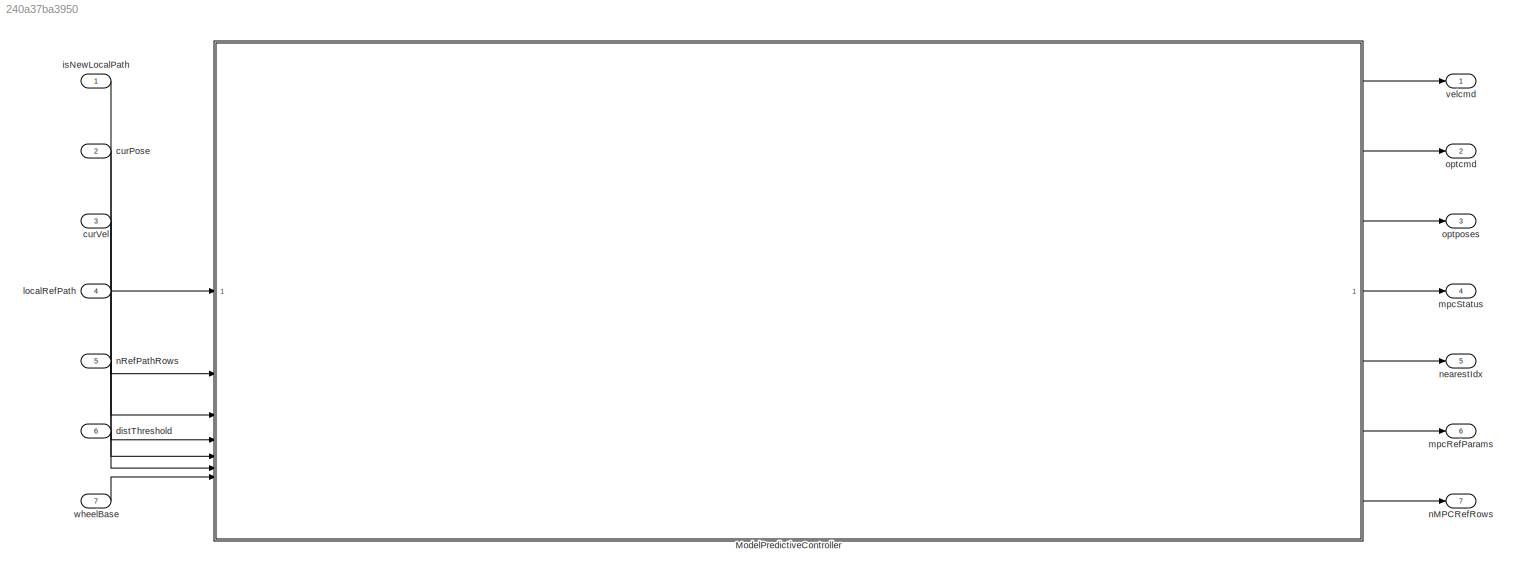
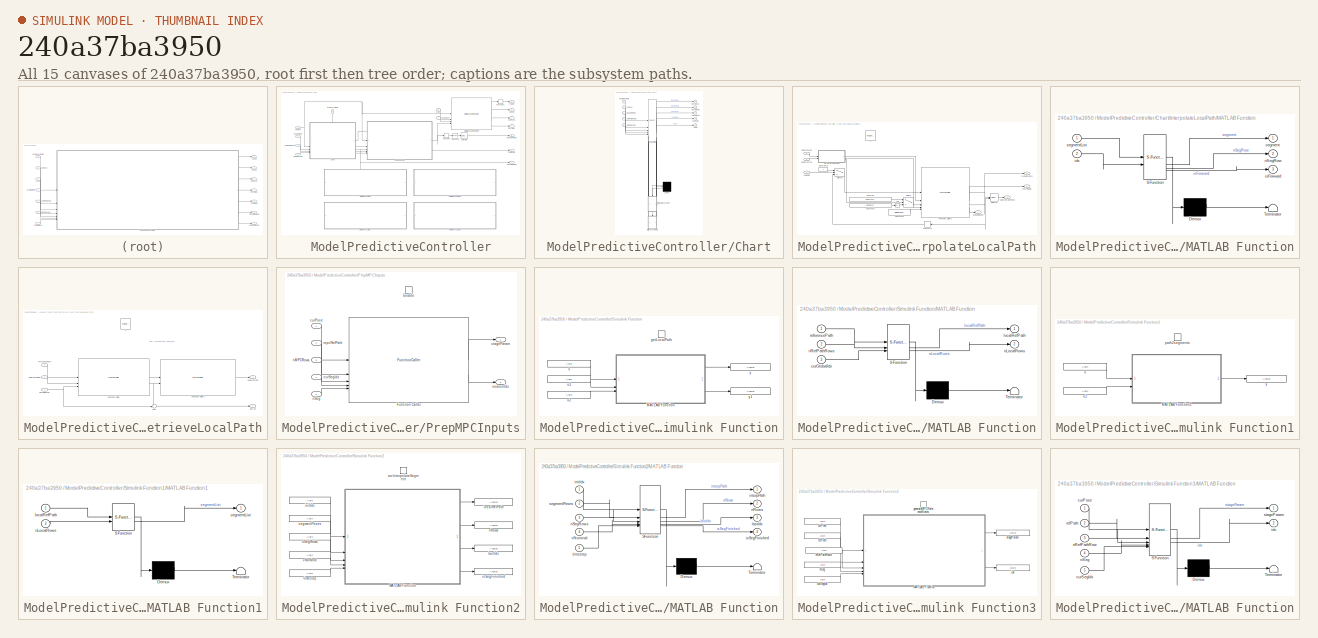
[diagram: thumbnail index - all 15 canvases of the model, root first then tree order]
MODEL slx_240a37ba3950
KIND model
CONFIG AbsTol = auto
CONFIG EnableMultiTasking = off
CONFIG FixedStep = auto
CONFIG MaxStep = auto
CONFIG MinStep = auto
CONFIG RelTol = 1e-3
CONFIG SampleTimeConstraint = Unconstrained
CONFIG SolverName = FixedStepAuto
CONFIG StartTime = 0.0
CONFIG StopTime = inf
BLOCK [SubSystem] ModelPredictiveController
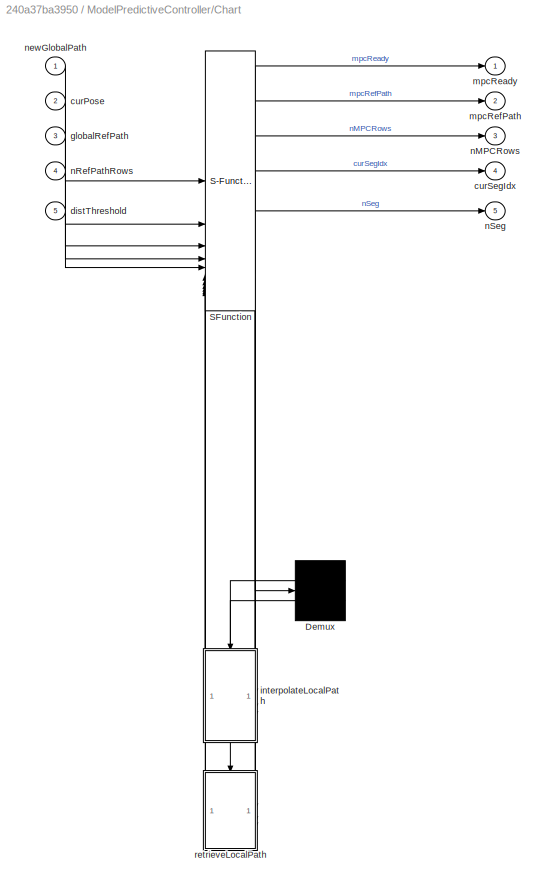
BLOCK [SubSystem] ModelPredictiveController/Chart
  ErrorFcn = Stateflow.Translate.translate
  PermitHierarchicalResolution = ExplicitOnly
  PortSchema = {"entries":[{"content":{"sides":[{"content":{"connectorIds":["In2","In3","In4","In5"]},"type":"ConnectorPlacement.EquallySpacedRectSide","uuid":"d330c18e-78c4-4446-bef4-6c07f5901eab"},{"content":{"connectorIds":["Out1","Out2","Out3","Out4","Out5"],"side":"RIGHT"},"type":"ConnectorPlacement.EquallySpacedRectSide","uuid":"b290a02e-6c58-4d00-b488-7afeab83322a"},{"content":{"connectorIds":["In1"],"sid...<+291ch>
  SFBlockType = Chart
  TreatAsAtomicUnit = on
BLOCK [Demux] ModelPredictiveController/Chart/ Demux 
  Outputs = 2
BLOCK [S-Function] ModelPredictiveController/Chart/ SFunction 
  EnableBusSupport = on
  FunctionName = sf_sfun
  PortCounts = [11 12]
  SFcnIsStateOwnerBlock = off
  SFunctionDeploymentMode = off
  Tag = Stateflow S-Function 6
BLOCK [Inport] ModelPredictiveController/Chart/curPose
  Port = 2
BLOCK [Outport] ModelPredictiveController/Chart/curSegIdx
  Port = 4
BLOCK [Inport] ModelPredictiveController/Chart/distThreshold
  Port = 5
BLOCK [Inport] ModelPredictiveController/Chart/globalRefPath
  Port = 3
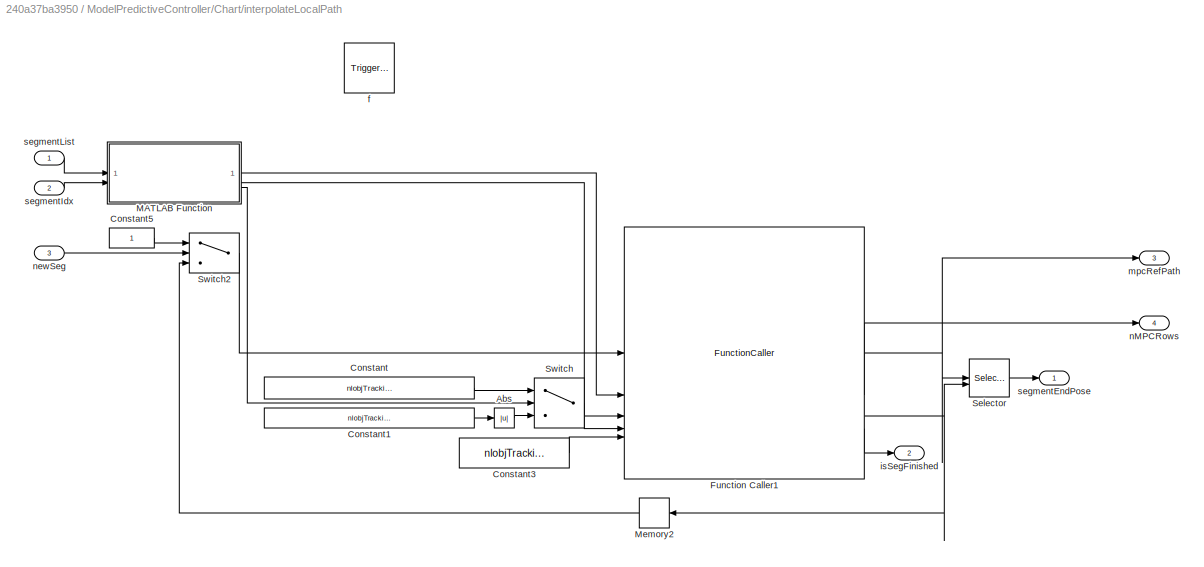
BLOCK [SubSystem] ModelPredictiveController/Chart/interpolateLocalPath
  PreDeleteFcn = Stateflow.SLINSF.SimulinkMan.removePreDeleteFcn
  UndoDeleteFcn = Stateflow.SLINSF.SimulinkMan.restorePreDeleteFcn
BLOCK [Abs] ModelPredictiveController/Chart/interpolateLocalPath/Abs
  SaturateOnIntegerOverflow = off
BLOCK [Constant] ModelPredictiveController/Chart/interpolateLocalPath/Constant
  Value = nlobjTracking.ManipulatedVariables(1).Max
BLOCK [Constant] ModelPredictiveController/Chart/interpolateLocalPath/Constant1
  Value = nlobjTracking.ManipulatedVariables(1).Min
BLOCK [Constant] ModelPredictiveController/Chart/interpolateLocalPath/Constant3
  Value = nlobjTracking.Ts
BLOCK [Constant] ModelPredictiveController/Chart/interpolateLocalPath/Constant5
BLOCK [FunctionCaller] ModelPredictiveController/Chart/interpolateLocalPath/Function Caller1
  FunctionPrototype = [localRefPath,nRows,lastIdx,isSegFinished] = arcInterpolateSegment(initIdx,segmentPoses,nSegRows,vNominal,timestep)
  InputArgumentSpecifications = <Enter example>
  OutputArgumentSpecifications = <Enter example>
BLOCK [SubSystem] ModelPredictiveController/Chart/interpolateLocalPath/MATLAB Function
  ErrorFcn = Stateflow.Translate.translate
  PermitHierarchicalResolution = ExplicitOnly
  SFBlockType = MATLAB Function
  TreatAsAtomicUnit = on
BLOCK [Demux] ModelPredictiveController/Chart/interpolateLocalPath/MATLAB Function/ Demux 
  Outputs = 1
BLOCK [S-Function] ModelPredictiveController/Chart/interpolateLocalPath/MATLAB Function/ SFunction 
  EnableBusSupport = on
  FunctionName = sf_sfun
  Parameters = maxLocalPathLen
  PortCounts = [2 4]
  SFcnIsStateOwnerBlock = off
  SFunctionDeploymentMode = off
  Tag = Stateflow S-Function 8
BLOCK [Terminator] ModelPredictiveController/Chart/interpolateLocalPath/MATLAB Function/ Terminator 
BLOCK [Inport] ModelPredictiveController/Chart/interpolateLocalPath/MATLAB Function/idx
  Port = 2
BLOCK [Outport] ModelPredictiveController/Chart/interpolateLocalPath/MATLAB Function/isForward
  Port = 3
BLOCK [Outport] ModelPredictiveController/Chart/interpolateLocalPath/MATLAB Function/nSegRow
  Port = 2
BLOCK [Outport] ModelPredictiveController/Chart/interpolateLocalPath/MATLAB Function/segment
BLOCK [Inport] ModelPredictiveController/Chart/interpolateLocalPath/MATLAB Function/segmentList
BLOCK [Memory] ModelPredictiveController/Chart/interpolateLocalPath/Memory2
  InheritSampleTime = on
  NameLocation = top
BLOCK [Selector] ModelPredictiveController/Chart/interpolateLocalPath/Selector
  IndexOptions = Index vector (port),Select all
  Indices = [1 3],1
  InputPortWidth = 3
  NumberOfDimensions = 2
  OutputSizes = 1,1
BLOCK [Switch] ModelPredictiveController/Chart/interpolateLocalPath/Switch
  Criteria = u2 > Threshold
  InputSameDT = off
  SaturateOnIntegerOverflow = off
BLOCK [Switch] ModelPredictiveController/Chart/interpolateLocalPath/Switch2
  Criteria = u2 > Threshold
  InputSameDT = off
  SaturateOnIntegerOverflow = off
BLOCK [TriggerPort] ModelPredictiveController/Chart/interpolateLocalPath/f
  CopyFcn = Stateflow.SLINSF.SimulinkMan.removeBlockPreDeleteFcn
  PreDeleteFcn = Stateflow.SLINSF.SimulinkMan.unsafePredeleteFcn
  StatesWhenEnabling = held
  TriggerType = function-call
  VariantControl = (inherit)
BLOCK [Outport] ModelPredictiveController/Chart/interpolateLocalPath/isSegFinished
  Port = 2
BLOCK [Outport] ModelPredictiveController/Chart/interpolateLocalPath/mpcRefPath
  Port = 3
BLOCK [Outport] ModelPredictiveController/Chart/interpolateLocalPath/nMPCRows
  Port = 4
BLOCK [Inport] ModelPredictiveController/Chart/interpolateLocalPath/newSeg
  OutDataTypeStr = boolean
  Port = 3
  PortDimensions = 1
  SignalType = real
  VarSizeSig = No
BLOCK [Outport] ModelPredictiveController/Chart/interpolateLocalPath/segmentEndPose
BLOCK [Inport] ModelPredictiveController/Chart/interpolateLocalPath/segmentIdx
  OutDataTypeStr = double
  Port = 2
  PortDimensions = 1
  SignalType = real
  VarSizeSig = No
BLOCK [Inport] ModelPredictiveController/Chart/interpolateLocalPath/segmentList
  OutDataTypeStr = Bus: mpcPathList_fixed_bus
  PortDimensions = 1
  VarSizeSig = No
BLOCK [Outport] ModelPredictiveController/Chart/mpcReady
BLOCK [Outport] ModelPredictiveController/Chart/mpcRefPath
  Port = 2
BLOCK [Outport] ModelPredictiveController/Chart/nMPCRows
  Port = 3
BLOCK [Inport] ModelPredictiveController/Chart/nRefPathRows
  Port = 4
BLOCK [Outport] ModelPredictiveController/Chart/nSeg
  Port = 5
BLOCK [Inport] ModelPredictiveController/Chart/newGlobalPath
BLOCK [SubSystem] ModelPredictiveController/Chart/retrieveLocalPath
  PreDeleteFcn = Stateflow.SLINSF.SimulinkMan.removePreDeleteFcn
  UndoDeleteFcn = Stateflow.SLINSF.SimulinkMan.restorePreDeleteFcn
BLOCK [FunctionCaller] ModelPredictiveController/Chart/retrieveLocalPath/Function Caller
  FunctionPrototype = [localRefPath,nLocalRows] = getLocalPath(referencePath,nRefPathRows,curGlobalIdx)
  InputArgumentSpecifications = <Enter example>
  OutputArgumentSpecifications = <Enter example>
BLOCK [FunctionCaller] ModelPredictiveController/Chart/retrieveLocalPath/Function Caller1
  FunctionPrototype = segmentList = path2segments(referencePath,nLocalRows)
  InputArgumentSpecifications = <Enter example>
  OutputArgumentSpecifications = <Enter example>
BLOCK [Sum] ModelPredictiveController/Chart/retrieveLocalPath/Sum
  Inputs = ++|
BLOCK [TriggerPort] ModelPredictiveController/Chart/retrieveLocalPath/f
  CopyFcn = Stateflow.SLINSF.SimulinkMan.removeBlockPreDeleteFcn
  PreDeleteFcn = Stateflow.SLINSF.SimulinkMan.unsafePredeleteFcn
  StatesWhenEnabling = held
  TriggerType = function-call
  VariantControl = (inherit)
BLOCK [Inport] ModelPredictiveController/Chart/retrieveLocalPath/lastGlobalIdx
  OutDataTypeStr = double
  Port = 3
  PortDimensions = 1
  SignalType = real
  VarSizeSig = No
BLOCK [Outport] ModelPredictiveController/Chart/retrieveLocalPath/lastIdx
  OutDataTypeStr = double
  Port = 2
  PortDimensions = 1
  SignalType = real
  VarSizeSig = No
BLOCK [Inport] ModelPredictiveController/Chart/retrieveLocalPath/nRefPathRows
  OutDataTypeStr = double
  Port = 2
  PortDimensions = 1
  SignalType = real
  VarSizeSig = No
BLOCK [Inport] ModelPredictiveController/Chart/retrieveLocalPath/referencePath
  OutDataTypeStr = double
  PortDimensions = [maxRefPathLen 3]
  SignalType = real
  VarSizeSig = No
BLOCK [Outport] ModelPredictiveController/Chart/retrieveLocalPath/segmentList
  OutDataTypeStr = Bus: mpcPathList_fixed_bus
  PortDimensions = 1
BLOCK [Reference] ModelPredictiveController/Multistage Nonlinear MPC  REF=mpclib/Multistage Nonlinear MPC  (lib defined in mdl_ae329e0e0455)
  SourceBlock = mpclib/Multistage Nonlinear MPC
  SourceType = NonlinearMPCMultistage
BLOCK [SubSystem] ModelPredictiveController/PrepMPCInputs
BLOCK [EnablePort] ModelPredictiveController/PrepMPCInputs/Enable
  StatesWhenEnabling = reset
BLOCK [FunctionCaller] ModelPredictiveController/PrepMPCInputs/Function Caller
  FunctionPrototype = [stageParam,idx] = generateMPCReferenceStates(curPose,refPath,nRefPathRows,curSegIdx,nSeg)
  InputArgumentSpecifications = <Enter example>
  OutputArgumentSpecifications = <Enter example>
BLOCK [Inport] ModelPredictiveController/PrepMPCInputs/curPose
BLOCK [Inport] ModelPredictiveController/PrepMPCInputs/curSegIdx
  Port = 4
BLOCK [Inport] ModelPredictiveController/PrepMPCInputs/mpcRefPath
  Port = 2
BLOCK [Inport] ModelPredictiveController/PrepMPCInputs/nMPCRows
  Port = 3
BLOCK [Inport] ModelPredictiveController/PrepMPCInputs/nSeg
  Port = 5
BLOCK [Outport] ModelPredictiveController/PrepMPCInputs/nearestIdx
  Port = 2
BLOCK [Outport] ModelPredictiveController/PrepMPCInputs/stageParam
BLOCK [Reshape] ModelPredictiveController/Reshape
  OutputDimensionality = Customize
  OutputDimensions = [4,11]
BLOCK [Reshape] ModelPredictiveController/Reshape1
  OutputDimensionality = Row vector (2-D)
BLOCK [Selector] ModelPredictiveController/Selector1
  IndexOptions = Index vector (dialog),Index vector (dialog)
  Indices = 2:11,1:3
  InputPortWidth = 3
  NumberOfDimensions = 2
  OutputSizes = 1,1
BLOCK [SubSystem] ModelPredictiveController/Simulink Function
  TreatAsAtomicUnit = on
BLOCK [SubSystem] ModelPredictiveController/Simulink Function/MATLAB Function
  ErrorFcn = Stateflow.Translate.translate
  PermitHierarchicalResolution = ExplicitOnly
  SFBlockType = MATLAB Function
  TreatAsAtomicUnit = on
BLOCK [Demux] ModelPredictiveController/Simulink Function/MATLAB Function/ Demux 
  Outputs = 1
BLOCK [S-Function] ModelPredictiveController/Simulink Function/MATLAB Function/ SFunction 
  EnableBusSupport = on
  FunctionName = sf_sfun
  Parameters = maxLocalLength,maxPathLength
  PortCounts = [3 3]
  SFcnIsStateOwnerBlock = off
  SFunctionDeploymentMode = off
  Tag = Stateflow S-Function 1
BLOCK [Terminator] ModelPredictiveController/Simulink Function/MATLAB Function/ Terminator 
BLOCK [Inport] ModelPredictiveController/Simulink Function/MATLAB Function/curGlobalIdx
  Port = 3
BLOCK [Outport] ModelPredictiveController/Simulink Function/MATLAB Function/localRefPath
BLOCK [Outport] ModelPredictiveController/Simulink Function/MATLAB Function/nLocalRows
  Port = 2
BLOCK [Inport] ModelPredictiveController/Simulink Function/MATLAB Function/nRefPathRows
  Port = 2
BLOCK [Inport] ModelPredictiveController/Simulink Function/MATLAB Function/referencePath
BLOCK [TriggerPort] ModelPredictiveController/Simulink Function/getLocalPath
  FunctionName = getLocalPath
  IsSimulinkFunction = on
  StatesWhenEnabling = held
  TriggerType = function-call
  VariantControl = (inherit)
BLOCK [ArgIn] ModelPredictiveController/Simulink Function/u
  ArgumentName = referencePath
  DisableCoverage = on
  PortDimensions = [maxRefPathLen 3]
BLOCK [ArgIn] ModelPredictiveController/Simulink Function/u1
  ArgumentName = nRefPathRows
  DisableCoverage = on
  Port = 2
BLOCK [ArgIn] ModelPredictiveController/Simulink Function/u2
  ArgumentName = curGlobalIdx
  DisableCoverage = on
  Port = 3
BLOCK [ArgOut] ModelPredictiveController/Simulink Function/y
  ArgumentName = localRefPath
  DisableCoverage = on
  PortDimensions = [maxLocalPathLen 3]
BLOCK [ArgOut] ModelPredictiveController/Simulink Function/y1
  ArgumentName = nLocalRows
  DisableCoverage = on
  Port = 2
BLOCK [SubSystem] ModelPredictiveController/Simulink Function1
  TreatAsAtomicUnit = on
BLOCK [SubSystem] ModelPredictiveController/Simulink Function1/MATLAB Function1
  ErrorFcn = Stateflow.Translate.translate
  PermitHierarchicalResolution = ExplicitOnly
  SFBlockType = MATLAB Function
  TreatAsAtomicUnit = on
BLOCK [Demux] ModelPredictiveController/Simulink Function1/MATLAB Function1/ Demux 
  Outputs = 1
BLOCK [S-Function] ModelPredictiveController/Simulink Function1/MATLAB Function1/ SFunction 
  EnableBusSupport = on
  FunctionName = sf_sfun
  Parameters = maxLocalPathLen,maxRefPathLen
  PortCounts = [2 2]
  SFcnIsStateOwnerBlock = off
  SFunctionDeploymentMode = off
  Tag = Stateflow S-Function 3
BLOCK [Terminator] ModelPredictiveController/Simulink Function1/MATLAB Function1/ Terminator 
BLOCK [Inport] ModelPredictiveController/Simulink Function1/MATLAB Function1/localRefPath
BLOCK [Inport] ModelPredictiveController/Simulink Function1/MATLAB Function1/nLocalRows
  Port = 2
BLOCK [Outport] ModelPredictiveController/Simulink Function1/MATLAB Function1/segmentList
BLOCK [TriggerPort] ModelPredictiveController/Simulink Function1/path2segments
  FunctionName = path2segments
  IsSimulinkFunction = on
  StatesWhenEnabling = held
  TriggerType = function-call
  VariantControl = (inherit)
BLOCK [ArgIn] ModelPredictiveController/Simulink Function1/u
  ArgumentName = referencePath
  DisableCoverage = on
  PortDimensions = [maxLocalPathLen 3]
BLOCK [ArgIn] ModelPredictiveController/Simulink Function1/u1
  ArgumentName = nLocalRows
  DisableCoverage = on
  Port = 2
BLOCK [ArgOut] ModelPredictiveController/Simulink Function1/y
  ArgumentName = segmentList
  DisableCoverage = on
  OutDataTypeStr = Bus: mpcPathList_fixed_bus
BLOCK [SubSystem] ModelPredictiveController/Simulink Function2
  TreatAsAtomicUnit = on
BLOCK [SubSystem] ModelPredictiveController/Simulink Function2/MATLAB Function
  ErrorFcn = Stateflow.Translate.translate
  PermitHierarchicalResolution = ExplicitOnly
  SFBlockType = MATLAB Function
  TreatAsAtomicUnit = on
BLOCK [Demux] ModelPredictiveController/Simulink Function2/MATLAB Function/ Demux 
  Outputs = 1
BLOCK [S-Function] ModelPredictiveController/Simulink Function2/MATLAB Function/ SFunction 
  EnableBusSupport = on
  FunctionName = sf_sfun
  Parameters = maxPathLength
  PortCounts = [5 5]
  SFcnIsStateOwnerBlock = off
  SFunctionDeploymentMode = off
  Tag = Stateflow S-Function 4
BLOCK [Terminator] ModelPredictiveController/Simulink Function2/MATLAB Function/ Terminator 
BLOCK [Inport] ModelPredictiveController/Simulink Function2/MATLAB Function/initIdx
BLOCK [Outport] ModelPredictiveController/Simulink Function2/MATLAB Function/interpPath
BLOCK [Outport] ModelPredictiveController/Simulink Function2/MATLAB Function/isSegFinished
  Port = 4
BLOCK [Outport] ModelPredictiveController/Simulink Function2/MATLAB Function/lastIdx
  Port = 3
BLOCK [Outport] ModelPredictiveController/Simulink Function2/MATLAB Function/nRows
  Port = 2
BLOCK [Inport] ModelPredictiveController/Simulink Function2/MATLAB Function/nSegRows
  Port = 3
BLOCK [Inport] ModelPredictiveController/Simulink Function2/MATLAB Function/segmentPoses
  Port = 2
BLOCK [Inport] ModelPredictiveController/Simulink Function2/MATLAB Function/timestep
  Port = 5
BLOCK [Inport] ModelPredictiveController/Simulink Function2/MATLAB Function/vNominal
  Port = 4
BLOCK [TriggerPort] ModelPredictiveController/Simulink Function2/arcInterpolateSegment
  FunctionName = arcInterpolateSegment
  IsSimulinkFunction = on
  StatesWhenEnabling = held
  TriggerType = function-call
  VariantControl = (inherit)
BLOCK [ArgIn] ModelPredictiveController/Simulink Function2/initIdx
  ArgumentName = initIdx
  DisableCoverage = on
BLOCK [ArgOut] ModelPredictiveController/Simulink Function2/isSegFinished
  ArgumentName = isSegFinished
  DisableCoverage = on
  OutDataTypeStr = boolean
  Port = 4
BLOCK [ArgOut] ModelPredictiveController/Simulink Function2/lastIdx
  ArgumentName = lastIdx
  DisableCoverage = on
  Port = 3
BLOCK [ArgOut] ModelPredictiveController/Simulink Function2/localRefPath
  ArgumentName = localRefPath
  DisableCoverage = on
  PortDimensions = [maxLocalPathLen 3]
BLOCK [ArgOut] ModelPredictiveController/Simulink Function2/nRows
  ArgumentName = nRows
  DisableCoverage = on
  Port = 2
BLOCK [ArgIn] ModelPredictiveController/Simulink Function2/nSegRows
  ArgumentName = nSegRows
  DisableCoverage = on
  Port = 3
BLOCK [ArgIn] ModelPredictiveController/Simulink Function2/segmentPoses
  ArgumentName = segmentPoses
  DisableCoverage = on
  Port = 2
  PortDimensions = [maxLocalPathLen 3]
BLOCK [ArgIn] ModelPredictiveController/Simulink Function2/timestep
  ArgumentName = timestep
  DisableCoverage = on
  Port = 5
BLOCK [ArgIn] ModelPredictiveController/Simulink Function2/vNominal
  ArgumentName = vNominal
  DisableCoverage = on
  Port = 4
BLOCK [SubSystem] ModelPredictiveController/Simulink Function3
  TreatAsAtomicUnit = on
BLOCK [SubSystem] ModelPredictiveController/Simulink Function3/MATLAB Function
  ErrorFcn = Stateflow.Translate.translate
  PermitHierarchicalResolution = ExplicitOnly
  SFBlockType = MATLAB Function
  TreatAsAtomicUnit = on
BLOCK [Demux] ModelPredictiveController/Simulink Function3/MATLAB Function/ Demux 
  Outputs = 1
BLOCK [S-Function] ModelPredictiveController/Simulink Function3/MATLAB Function/ SFunction 
  EnableBusSupport = on
  FunctionName = sf_sfun
  Parameters = predictionHorizon
  PortCounts = [5 3]
  SFcnIsStateOwnerBlock = off
  SFunctionDeploymentMode = off
  Tag = Stateflow S-Function 2
BLOCK [Terminator] ModelPredictiveController/Simulink Function3/MATLAB Function/ Terminator 
BLOCK [Inport] ModelPredictiveController/Simulink Function3/MATLAB Function/curPose
BLOCK [Inport] ModelPredictiveController/Simulink Function3/MATLAB Function/curSegIdx
  Port = 5
BLOCK [Outport] ModelPredictiveController/Simulink Function3/MATLAB Function/idx
  Port = 2
BLOCK [Inport] ModelPredictiveController/Simulink Function3/MATLAB Function/nRefPathRow
  Port = 3
BLOCK [Inport] ModelPredictiveController/Simulink Function3/MATLAB Function/nSeg
  Port = 4
BLOCK [Inport] ModelPredictiveController/Simulink Function3/MATLAB Function/refPath
  Port = 2
BLOCK [Outport] ModelPredictiveController/Simulink Function3/MATLAB Function/stageParam
BLOCK [ArgIn] ModelPredictiveController/Simulink Function3/curPose
  ArgumentName = curPose
  DisableCoverage = on
  PortDimensions = [1 3]
BLOCK [ArgIn] ModelPredictiveController/Simulink Function3/curSegIdx
  ArgumentName = curSegIdx
  Port = 4
BLOCK [TriggerPort] ModelPredictiveController/Simulink Function3/generateMPCReferenceStates
  FunctionName = generateMPCReferenceStates
  IsSimulinkFunction = on
  StatesWhenEnabling = held
  TriggerType = function-call
  VariantControl = (inherit)
BLOCK [ArgOut] ModelPredictiveController/Simulink Function3/idx
  ArgumentName = idx
  DisableCoverage = on
  Port = 2
BLOCK [ArgIn] ModelPredictiveController/Simulink Function3/nRefPathRows
  ArgumentName = nRefPathRows
  DisableCoverage = on
  Port = 3
BLOCK [ArgIn] ModelPredictiveController/Simulink Function3/nSeg
  ArgumentName = nSeg
  Port = 5
BLOCK [ArgIn] ModelPredictiveController/Simulink Function3/refPath
  ArgumentName = refPath
  DisableCoverage = on
  Port = 2
  PortDimensions = [maxLocalPathLen 3]
BLOCK [ArgOut] ModelPredictiveController/Simulink Function3/stageParam
  ArgumentName = stageParam
  DisableCoverage = on
  PortDimensions = (nlobjTracking.PredictionHorizon+1)*4
BLOCK [Math] ModelPredictiveController/Transpose
  Operator = transpose
BLOCK [Inport] ModelPredictiveController/curPose
  Port = 2
  PortDimensions = [1 3]
BLOCK [Inport] ModelPredictiveController/curVel
  NameLocation = top
  Port = 3
BLOCK [Inport] ModelPredictiveController/distThreshold
  Port = 6
BLOCK [Inport] ModelPredictiveController/isNewLocallPath
  NameLocation = left
BLOCK [Inport] ModelPredictiveController/localRefPath
  Port = 4
  PortDimensions = [maxRefPathLen 3]
BLOCK [Outport] ModelPredictiveController/mpcRefParams
  Port = 6
BLOCK [Outport] ModelPredictiveController/mpcStatus
  Port = 4
BLOCK [Outport] ModelPredictiveController/nMPCRefRows
  Port = 7
BLOCK [Inport] ModelPredictiveController/nRefPathRows
  Port = 5
BLOCK [Outport] ModelPredictiveController/nearestIdx
  Port = 5
BLOCK [Outport] ModelPredictiveController/optCmd
  Port = 2
BLOCK [Outport] ModelPredictiveController/optPoses
  Port = 3
BLOCK [Outport] ModelPredictiveController/velCmd
  PortDimensions = [1 2]
BLOCK [Inport] ModelPredictiveController/wheelBase
  Port = 7
BLOCK [Inport] curPose
  Port = 2
  PortDimensions = [1 3]
BLOCK [Inport] curVel
  Port = 3
  PortDimensions = [1 2]
BLOCK [Inport] distThreshold
  Port = 6
BLOCK [Inport] isNewLocalPath
  PortDimensions = 1
BLOCK [Inport] localRefPath
  Port = 4
  PortDimensions = [maxRefPathLen 3]
BLOCK [Outport] mpcRefParams
  Port = 6
  PortDimensions = [nlobjTracking.PredictionHorizon 3]
BLOCK [Outport] mpcStatus
  Port = 4
BLOCK [Outport] nMPCRefRows
  Port = 7
  PortDimensions = 1
BLOCK [Inport] nRefPathRows
  Port = 5
BLOCK [Outport] nearestIdx
  Port = 5
BLOCK [Outport] optcmd
  Port = 2
  PortDimensions = [nlobjTracking.PredictionHorizon+1 2]
BLOCK [Outport] optposes
  Port = 3
  PortDimensions = [nlobjTracking.PredictionHorizon+1 3]
BLOCK [Outport] velcmd
  PortDimensions = [1 2]
BLOCK [Inport] wheelBase
  Port = 7
ANNOTATION ModelPredictiveController/Chart/retrieveLocalPath: Bus: mpcPathList_fixed_bus
LINE ModelPredictiveController/Chart:1 -> ModelPredictiveController/PrepMPCInputs:enable
LINE ModelPredictiveController/Chart:2 -> ModelPredictiveController/PrepMPCInputs:2
NET ModelPredictiveController/Chart:3 -> ModelPredictiveController/PrepMPCInputs:3, ModelPredictiveController/nMPCRefRows:1
LINE ModelPredictiveController/Chart:4 -> ModelPredictiveController/PrepMPCInputs:4
LINE ModelPredictiveController/Chart:5 -> ModelPredictiveController/PrepMPCInputs:5
LINE ModelPredictiveController/Multistage Nonlinear MPC:1 -> ModelPredictiveController/Reshape1:1
LINE ModelPredictiveController/Multistage Nonlinear MPC:2 -> ModelPredictiveController/optCmd:1
LINE ModelPredictiveController/Multistage Nonlinear MPC:3 -> ModelPredictiveController/optPoses:1
LINE ModelPredictiveController/Multistage Nonlinear MPC:4 -> ModelPredictiveController/mpcStatus:1
LINE ModelPredictiveController/PrepMPCInputs/Function Caller:1 -> ModelPredictiveController/PrepMPCInputs/stageParam:1
LINE ModelPredictiveController/PrepMPCInputs/Function Caller:2 -> ModelPredictiveController/PrepMPCInputs/nearestIdx:1
LINE ModelPredictiveController/PrepMPCInputs/curPose:1 -> ModelPredictiveController/PrepMPCInputs/Function Caller:1
LINE ModelPredictiveController/PrepMPCInputs/curSegIdx:1 -> ModelPredictiveController/PrepMPCInputs/Function Caller:4
LINE ModelPredictiveController/PrepMPCInputs/mpcRefPath:1 -> ModelPredictiveController/PrepMPCInputs/Function Caller:2
LINE ModelPredictiveController/PrepMPCInputs/nMPCRows:1 -> ModelPredictiveController/PrepMPCInputs/Function Caller:3
LINE ModelPredictiveController/PrepMPCInputs/nSeg:1 -> ModelPredictiveController/PrepMPCInputs/Function Caller:5
NET ModelPredictiveController/PrepMPCInputs:1 -> ModelPredictiveController/Multistage Nonlinear MPC:4, ModelPredictiveController/Reshape:1
LINE ModelPredictiveController/PrepMPCInputs:2 -> ModelPredictiveController/nearestIdx:1
LINE ModelPredictiveController/Reshape1:1 -> ModelPredictiveController/velCmd:1
LINE ModelPredictiveController/Reshape:1 -> ModelPredictiveController/Transpose:1
LINE ModelPredictiveController/Selector1:1 -> ModelPredictiveController/mpcRefParams:1
LINE ModelPredictiveController/Simulink Function/MATLAB Function:1 -> ModelPredictiveController/Simulink Function/y:1
LINE ModelPredictiveController/Simulink Function/MATLAB Function:2 -> ModelPredictiveController/Simulink Function/y1:1
LINE ModelPredictiveController/Simulink Function/u1:1 -> ModelPredictiveController/Simulink Function/MATLAB Function:2
LINE ModelPredictiveController/Simulink Function/u2:1 -> ModelPredictiveController/Simulink Function/MATLAB Function:3
LINE ModelPredictiveController/Simulink Function/u:1 -> ModelPredictiveController/Simulink Function/MATLAB Function:1
LINE ModelPredictiveController/Simulink Function1/MATLAB Function1:1 -> ModelPredictiveController/Simulink Function1/y:1
LINE ModelPredictiveController/Simulink Function1/u1:1 -> ModelPredictiveController/Simulink Function1/MATLAB Function1:2
LINE ModelPredictiveController/Simulink Function1/u:1 -> ModelPredictiveController/Simulink Function1/MATLAB Function1:1
LINE ModelPredictiveController/Simulink Function2/MATLAB Function:1 -> ModelPredictiveController/Simulink Function2/localRefPath:1
LINE ModelPredictiveController/Simulink Function2/MATLAB Function:2 -> ModelPredictiveController/Simulink Function2/nRows:1
LINE ModelPredictiveController/Simulink Function2/MATLAB Function:3 -> ModelPredictiveController/Simulink Function2/lastIdx:1
LINE ModelPredictiveController/Simulink Function2/MATLAB Function:4 -> ModelPredictiveController/Simulink Function2/isSegFinished:1
LINE ModelPredictiveController/Simulink Function2/initIdx:1 -> ModelPredictiveController/Simulink Function2/MATLAB Function:1
LINE ModelPredictiveController/Simulink Function2/nSegRows:1 -> ModelPredictiveController/Simulink Function2/MATLAB Function:3
LINE ModelPredictiveController/Simulink Function2/segmentPoses:1 -> ModelPredictiveController/Simulink Function2/MATLAB Function:2
LINE ModelPredictiveController/Simulink Function2/timestep:1 -> ModelPredictiveController/Simulink Function2/MATLAB Function:5
LINE ModelPredictiveController/Simulink Function2/vNominal:1 -> ModelPredictiveController/Simulink Function2/MATLAB Function:4
LINE ModelPredictiveController/Simulink Function3/MATLAB Function:1 -> ModelPredictiveController/Simulink Function3/stageParam:1
LINE ModelPredictiveController/Simulink Function3/MATLAB Function:2 -> ModelPredictiveController/Simulink Function3/idx:1
LINE ModelPredictiveController/Simulink Function3/curPose:1 -> ModelPredictiveController/Simulink Function3/MATLAB Function:1
LINE ModelPredictiveController/Simulink Function3/curSegIdx:1 -> ModelPredictiveController/Simulink Function3/MATLAB Function:5
LINE ModelPredictiveController/Simulink Function3/nRefPathRows:1 -> ModelPredictiveController/Simulink Function3/MATLAB Function:3
LINE ModelPredictiveController/Simulink Function3/nSeg:1 -> ModelPredictiveController/Simulink Function3/MATLAB Function:4
LINE ModelPredictiveController/Simulink Function3/refPath:1 -> ModelPredictiveController/Simulink Function3/MATLAB Function:2
LINE ModelPredictiveController/Transpose:1 -> ModelPredictiveController/Selector1:1
NET ModelPredictiveController/curPose:1 -> ModelPredictiveController/Chart:2, ModelPredictiveController/Multistage Nonlinear MPC:1, ModelPredictiveController/PrepMPCInputs:1
LINE ModelPredictiveController/curVel:1 -> ModelPredictiveController/Multistage Nonlinear MPC:2
LINE ModelPredictiveController/distThreshold:1 -> ModelPredictiveController/Chart:5
LINE ModelPredictiveController/isNewLocallPath:1 -> ModelPredictiveController/Chart:1
LINE ModelPredictiveController/localRefPath:1 -> ModelPredictiveController/Chart:3
LINE ModelPredictiveController/nRefPathRows:1 -> ModelPredictiveController/Chart:4
LINE ModelPredictiveController/wheelBase:1 -> ModelPredictiveController/Multistage Nonlinear MPC:3
LINE ModelPredictiveController:1 -> velcmd:1
LINE ModelPredictiveController:2 -> optcmd:1
LINE ModelPredictiveController:3 -> optposes:1
LINE ModelPredictiveController:4 -> mpcStatus:1
LINE ModelPredictiveController:5 -> nearestIdx:1
LINE ModelPredictiveController:6 -> mpcRefParams:1
LINE ModelPredictiveController:7 -> nMPCRefRows:1
LINE curPose:1 -> ModelPredictiveController:2
LINE curVel:1 -> ModelPredictiveController:3
LINE distThreshold:1 -> ModelPredictiveController:6
LINE isNewLocalPath:1 -> ModelPredictiveController:1
LINE localRefPath:1 -> ModelPredictiveController:4
LINE nRefPathRows:1 -> ModelPredictiveController:5
LINE wheelBase:1 -> ModelPredictiveController:7
note: NET lines group one-source signal fan-out (src -> all destinations, sorted); 1:1 wires keep LINE
CHART ModelPredictiveController/Simulink Function/MATLAB Function states=1 transitions=1
  STATE_LABEL 'eML_blk_kernel()'
  STATE_LABEL 'SCRIPT:\nfunction [localRefPath,nLocalRows] = getLocalPath(referencePath,nRefPathRows,curGlobalIdx, maxPathLength, maxLocalLength)\n%getLocalPath Extract upcoming N poses from input path\n\nlocalRefPath = zeros(maxLocalLength,3);\nnLocalRows = min(nRefPathRows-(curGlobalIdx-1),maxLocalLength);\nlocalRefPath(1:nLocalRows,:) = referencePath(curGlobalIdx:(curGlobalIdx+nLocalRows-1),:);'
CHART ModelPredictiveController/Simulink Function3/MATLAB Function states=1 transitions=1
  STATE_LABEL 'eML_blk_kernel()'
  STATE_LABEL 'SCRIPT:\nfunction [stageParam,idx] = generateMPCReferenceStates(curPose, refPath, nRefPathRow, predictionHorizon,nSeg,curSegIdx)\n%generateMPCReferenceStates Extract reference poses for MPC controller given initial state and prediction horizon\n    [stageParam,idx] = exampleHelperGenerateMPCReferenceSegment(curPose,refPath(1:nRefPathRow,:),predictionHorizon);\nend'
CHART ModelPredictiveController/Simulink Function1/MATLAB Function1 states=1 transitions=1
  STATE_LABEL 'eML_blk_kernel()'
  STATE_LABEL 'SCRIPT:\nfunction segmentList = path2segments(localRefPath,nLocalRows,maxRefPathLen,maxLocalPathLen)\n%path2segments Identify uni-directional list of segments\n\n% Break refPath into pieces\n[segArray,pivotIdx,nSeg] = exampleHelperFindPivots(localRefPath(1:nLocalRows,:));\nsegmentList = exampleHelperEncodeBus(segArray,maxRefPathLen,maxLocalPathLen,Widths=size(localRefPath,2));'
CHART ModelPredictiveController/Simulink Function2/MATLAB Function states=1 transitions=1
  STATE_LABEL 'eML_blk_kernel()'
  STATE_LABEL 'SCRIPT:\nfunction [interpPath,nRows,lastIdx,isSegFinished] = arcInterpolateSegment(initIdx,segmentPoses,nSegRows,vNominal,timestep,maxPathLength)\n    fullyInterpedPath = exampleHelperEvenlyInterpSegment(segmentPoses(1:nSegRows,:),vNominal,timestep);\n    if size(fullyInterpedPath,1) == 1\n        fullyInterpedPath = [segmentPoses(1,:);segmentPoses(end,:)];\n    end\n    lastIdx = initIdx+size(fullyInte...<+309ch>'
CHART ModelPredictiveController/Chart states=4 transitions=20
  STATE_LABEL 'WaitForPath\nmpcReady = 0;'
  STATE_LABEL 'Running'
  STATE_LABEL '{\nvSegment = segGoal(:)-curPose(:);\nvGoal = goalPose(:)-curPose(:);\n}'
  STATE_LABEL '[norm(vSegment(1:2),2) <= distThreshold]'
  STATE_LABEL '[isSegFinished]'
  STATE_LABEL '[curSegIdx == nSeg]'
  STATE_LABEL '[norm(vGoal(1:2),2) <= distThreshold]\n{mpcReady=0;}'
  STATE_LABEL '{\ncurSegIdx=0;\n[segmentList,lastIdx] = retrieveLocalPath(globalRefPath,nRefPathRows,lastIdx);\nnSeg = segmentList.States_N;\n}'
  STATE_LABEL '{\ncurSegIdx = curSegIdx+1;\n[segGoal,isSegFinished,mpcRefPath,nMPCRows] = ...\n interpolateLocalPath(segmentList, curSegIdx, isSegFinished);\n}'
  STATE_LABEL '{mpcReady = 1;}'
  STATE_LABEL '[segmentList,lastIdx] = retrieveLocalPath(referencePath,nRefPathRows,lastGlobalIdx)'
  STATE_LABEL '[segmentEndPose,isSegFinished,mpcRefPath,nMPCRows] = interpolateLocalPath(segmentList,segmentIdx,newSeg)'
CHART ModelPredictiveController/Chart/interpolateLocalPath/MATLAB Function states=1 transitions=1
  STATE_LABEL 'eML_blk_kernel()'
  STATE_LABEL 'SCRIPT:\nfunction [segment,nSegRow,isForward] = getSegment(segmentList,idx,maxLocalPathLen)\n%getSegment Retrieve segment from list and determine motion direction\n    segment = zeros(maxLocalPathLen,3);\n    ptIdx = segmentList.StatesIndices(idx,:);\n    nSegRow = diff(ptIdx)+1;\n    seg = segmentList.States(ptIdx(1):ptIdx(2),:);\n    vHeading = [cos(seg(:,3)) sin(seg(:,3))];\n    vDirection = normalize(...<+127ch>'
CHART  states=0 transitions=0
CHART  states=0 transitions=0
CHART  states=0 transitions=0
CHART  states=0 transitions=0
CHART  states=0 transitions=0
CHART  states=0 transitions=0
